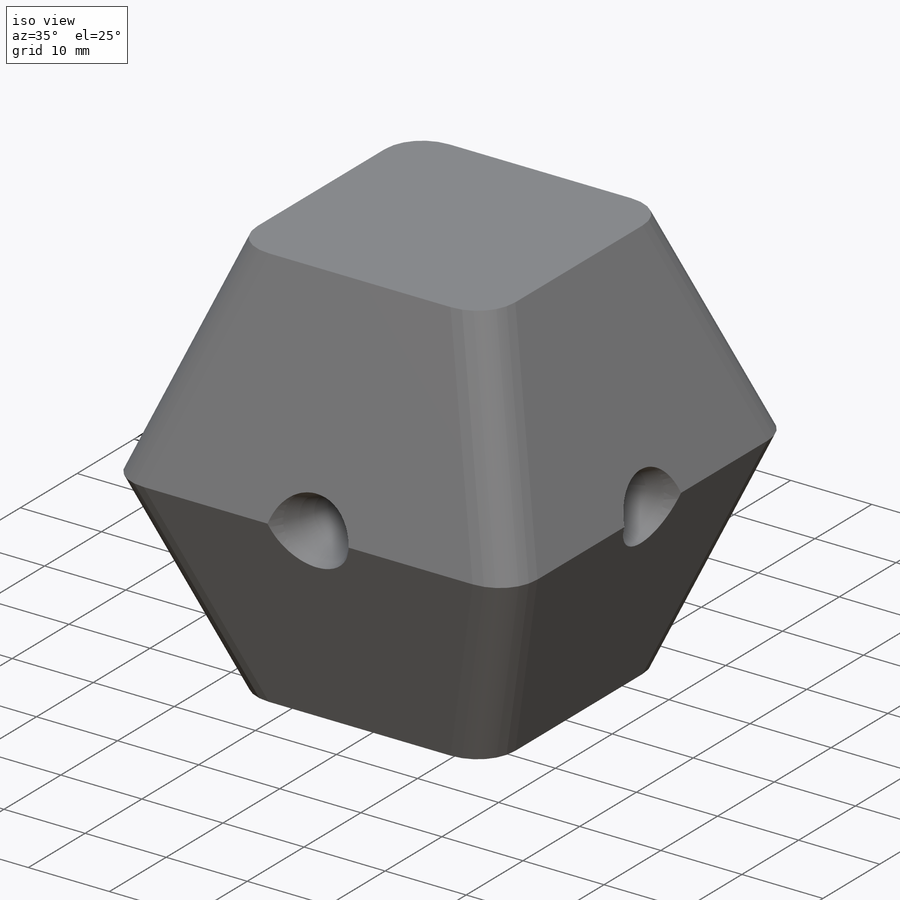
[diagram: iso view]
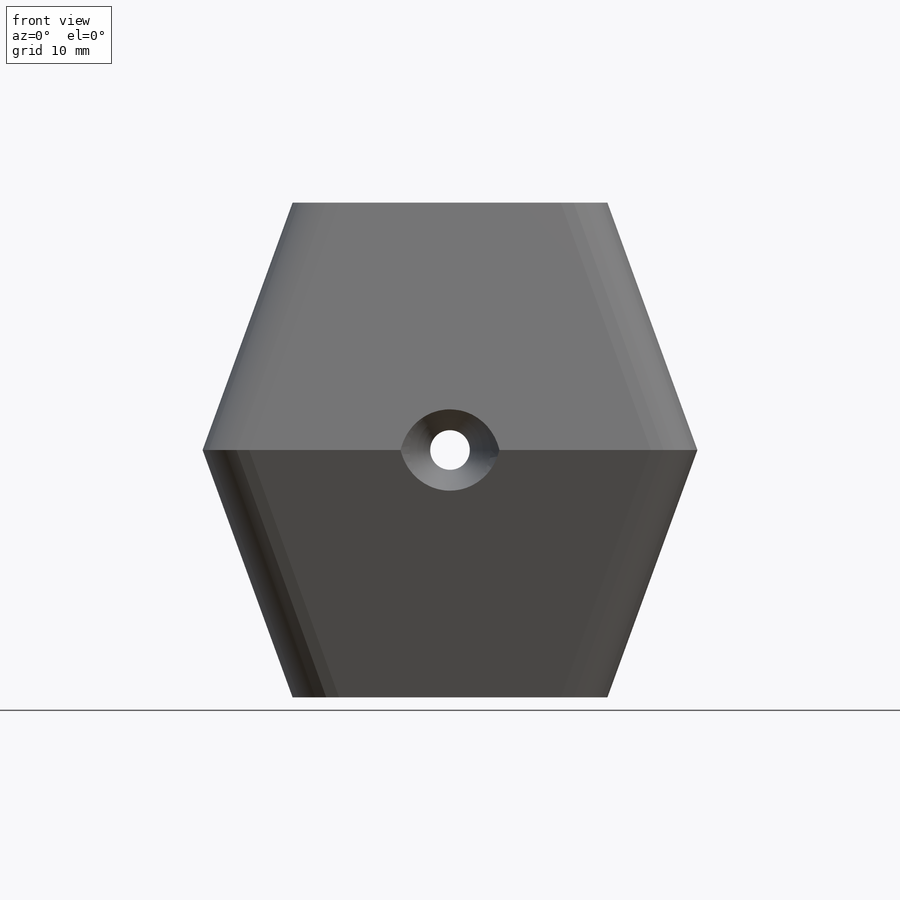
[diagram: front view]
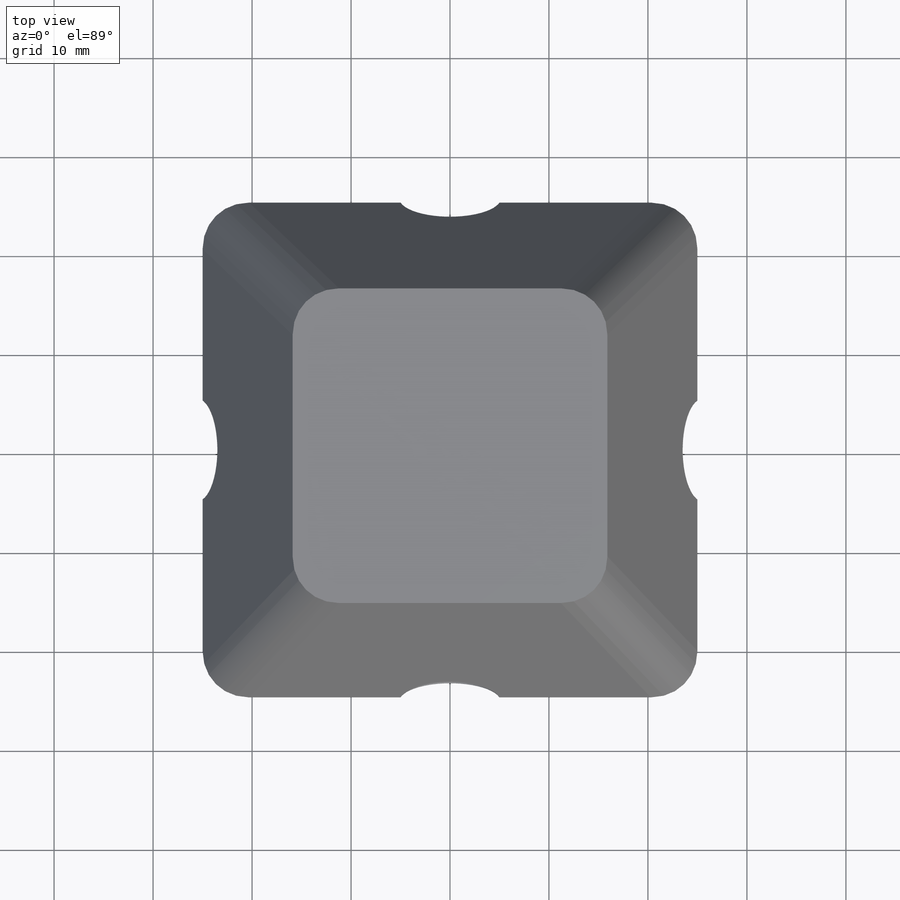
[diagram: top view]
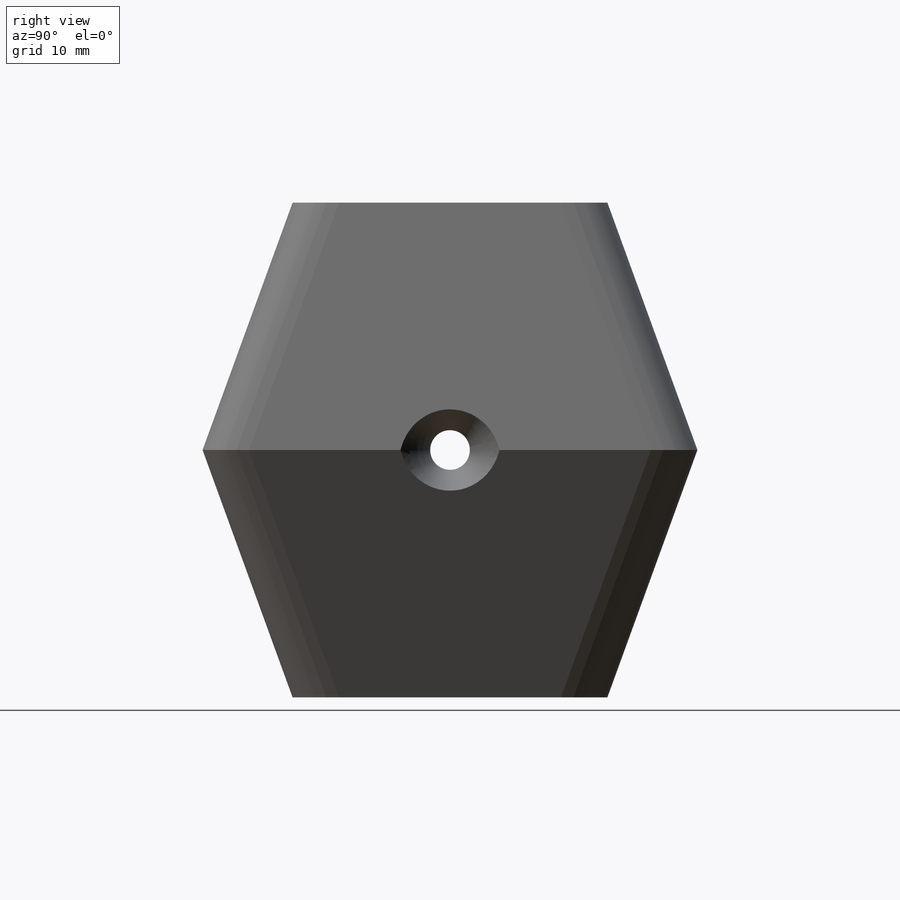
[diagram: right view]
SOLIDWORKS PART (.sldprt)
format: sldprt  version: not decoded by parser v0  size: 262,144 bytes
history: native  units: mm
features: sketch x2, material x1, extrude x1, plane x1, mirror x1, cut_revolve x1, pattern_circular x1, fillet x1 (+12 scaffold rows collapsed)
feature tree (21):
  scaffold x12  (default folders/planes/origin — collapsed)
  material  "Material <not specified>"
  sketch  "Sketch1"  dims[D1=50.0mm D2=50.0mm D3=25.0mm]
  extrude  "Boss-Extrude1"  Depth=25mm
  plane  "Plane1"  Offset=0mm
  mirror  "Mirror1"
  sketch  "Sketch3"  dims[c1.D1=15.0mm c1.D2=10.0mm c2.D1=5.0mm c2.D2=10.0mm c3.D1=5.0mm c3.D2=10.0mm c3.D3=2.0mm c3.D4=2.0mm]
  cut_revolve  "Cut-Revolve4"  Angle=360deg
  pattern_circular  "CirPattern2"  Count=4 Angle=360deg
  fillet  "Fillet1"  Radius=5mm
decode coverage: 6 of 7 modeling features carry decoded parameters
note: suppression state not decoded; provenance and decode notes live in map.json
